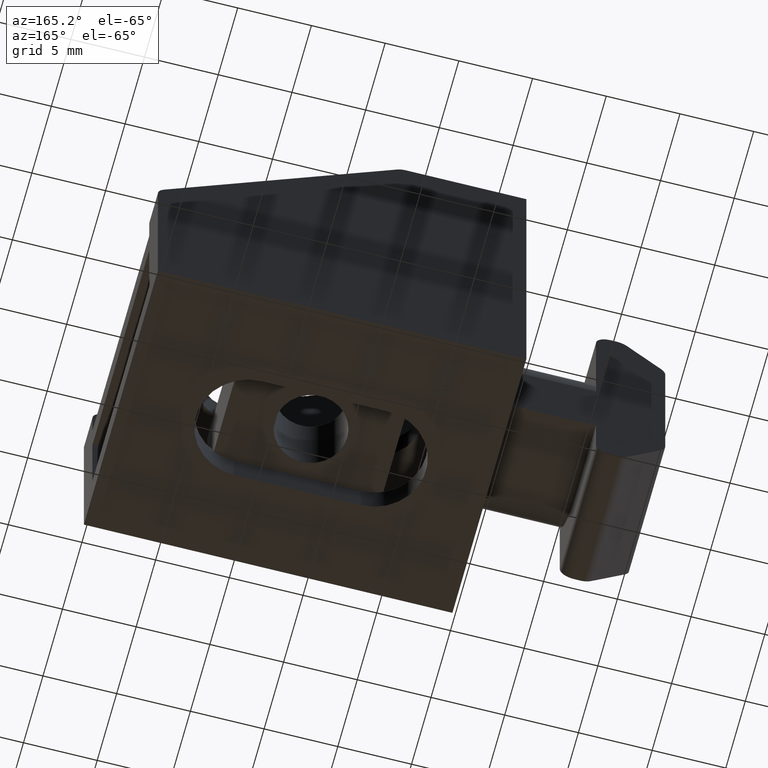
[diagram: clean part render]
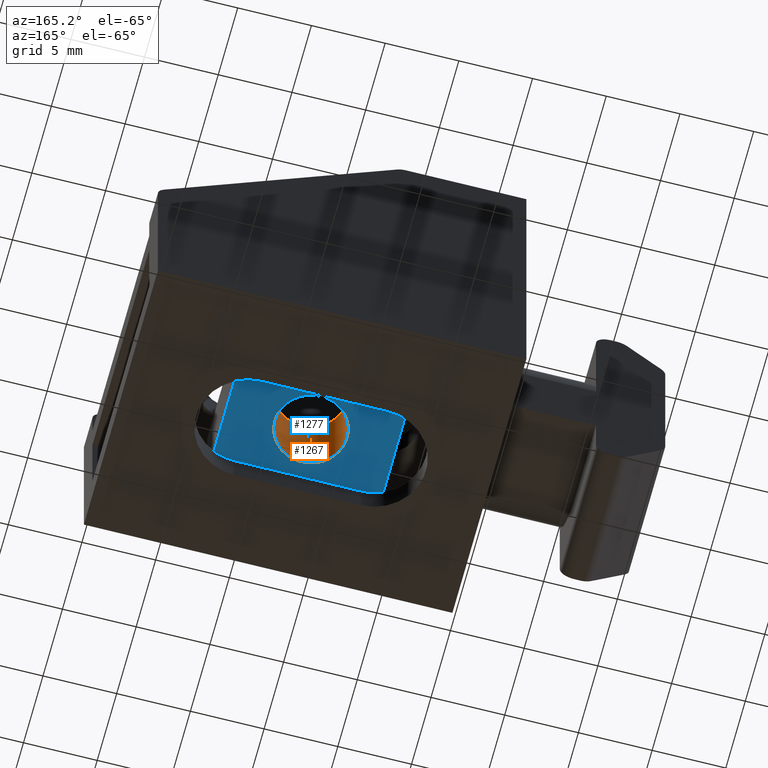
[diagram: same view with the hole feature highlighted: cylindrical wall and planar end face, labeled with their STEP entity ids]
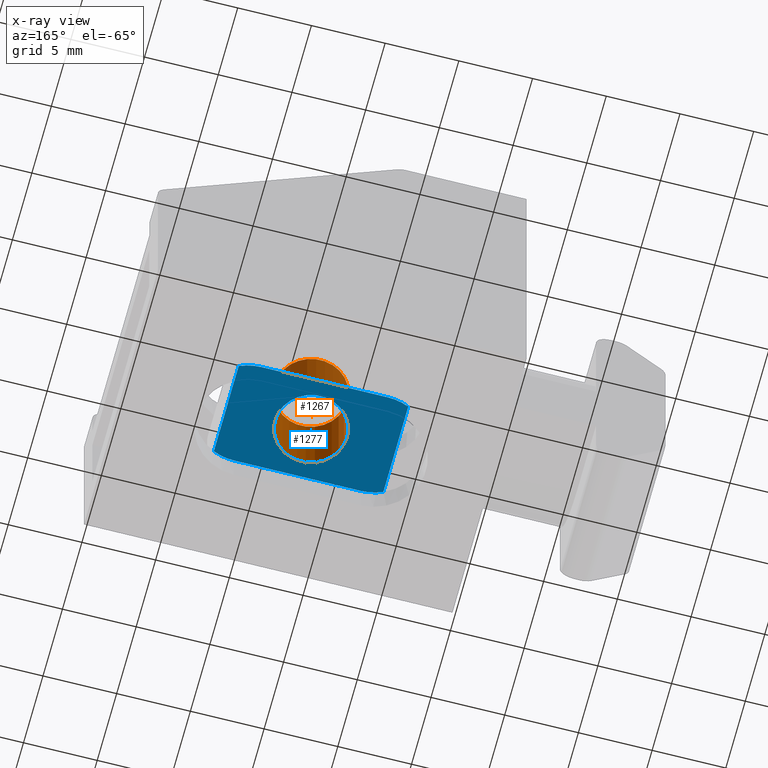
[diagram: x-ray of the same camera — body ghosted, the hole faces saturated]
A machine part, auxiliary view. The highlighted faces form one hole feature of diameter 4.917 mm: the cylindrical wall (entity #1267, orange) and its adjacent planar end face (entity #1277, blue) — they share a circular edge in the B-rep.
The next image is the same camera in x-ray (body ghosted, the hole faces saturated) — the bore reads through the body.
Wall:
#352=FACE_BOUND('',#425,.T.);
#360=FACE_OUTER_BOUND('',#424,.T.);
#424=EDGE_LOOP('',(#862));
#425=EDGE_LOOP('',(#863));
#496=CIRCLE('',#1334,2.4585);
#497=CIRCLE('',#1335,2.4585);
#544=VERTEX_POINT('',#1817);
#545=VERTEX_POINT('',#1819);
#670=EDGE_CURVE('',#544,#544,#496,.T.);
#671=EDGE_CURVE('',#545,#545,#497,.T.);
#862=ORIENTED_EDGE('',*,*,#670,.F.);
#863=ORIENTED_EDGE('',*,*,#671,.F.);
#1246=CYLINDRICAL_SURFACE('',#1333,2.4585);
#1267=ADVANCED_FACE('',(#360,#352),#1246,.F.);
#1333=AXIS2_PLACEMENT_3D('',#1816,#1447,#1448);
#1334=AXIS2_PLACEMENT_3D('',#1818,#1449,#1450);
#1335=AXIS2_PLACEMENT_3D('',#1820,#1451,#1452);
#1447=DIRECTION('center_axis',(3.52451753849256E-16,-1.52085345839063E-16,
1.));
#1448=DIRECTION('ref_axis',(1.,0.,-3.52451753849256E-16));
#1449=DIRECTION('center_axis',(1.77635683940025E-16,0.,1.));
#1450=DIRECTION('ref_axis',(1.,0.,-3.52451753849256E-16));
#1451=DIRECTION('center_axis',(-3.52451753849256E-16,1.52085345839063E-16,
-1.));
#1452=DIRECTION('ref_axis',(1.,0.,-3.52451753849256E-16));
#1816=CARTESIAN_POINT('Origin',(12.1,6.7404369530123E-15,-40.1700948508547));
#1817=CARTESIAN_POINT('',(9.6415,-4.51299118420538E-18,2.2));
#1818=CARTESIAN_POINT('Origin',(12.1,2.96566424386171E-16,2.2));
#1819=CARTESIAN_POINT('',(14.5585,-5.55111512312578E-16,7.79999999999999));
#1820=CARTESIAN_POINT('Origin',(12.1,-5.55111512312578E-16,7.79999999999999));
End face:
#19=PLANE('',#1355);
#84=LINE('',#1882,#228);
#90=LINE('',#1894,#234);
#92=LINE('',#1902,#236);
#93=LINE('',#1906,#237);
#228=VECTOR('',#1505,6.37102817447859);
#234=VECTOR('',#1517,6.37102817447859);
#236=VECTOR('',#1525,8.60000000000001);
#237=VECTOR('',#1530,8.6);
#354=FACE_BOUND('',#437,.T.);
#370=FACE_OUTER_BOUND('',#436,.T.);
#436=EDGE_LOOP('',(#917,#918,#919,#920,#921,#922,#923,#924));
#437=EDGE_LOOP('',(#925));
#496=CIRCLE('',#1334,2.4585);
#508=CIRCLE('',#1356,3.5);
#509=CIRCLE('',#1357,3.5);
#510=CIRCLE('',#1358,3.5);
#511=CIRCLE('',#1359,3.5);
#544=VERTEX_POINT('',#1817);
#569=VERTEX_POINT('',#1879);
#570=VERTEX_POINT('',#1881);
#572=VERTEX_POINT('',#1891);
#573=VERTEX_POINT('',#1893);
#574=VERTEX_POINT('',#1897);
#575=VERTEX_POINT('',#1899);
#576=VERTEX_POINT('',#1901);
#577=VERTEX_POINT('',#1904);
#670=EDGE_CURVE('',#544,#544,#496,.T.);
#701=EDGE_CURVE('',#569,#570,#84,.T.);
#708=EDGE_CURVE('',#572,#573,#90,.T.);
#710=EDGE_CURVE('',#574,#573,#508,.T.);
#711=EDGE_CURVE('',#572,#575,#509,.T.);
#712=EDGE_CURVE('',#575,#576,#92,.T.);
#713=EDGE_CURVE('',#576,#570,#510,.T.);
#714=EDGE_CURVE('',#569,#577,#511,.T.);
#715=EDGE_CURVE('',#577,#574,#93,.T.);
#917=ORIENTED_EDGE('',*,*,#710,.T.);
#918=ORIENTED_EDGE('',*,*,#708,.F.);
#919=ORIENTED_EDGE('',*,*,#711,.T.);
#920=ORIENTED_EDGE('',*,*,#712,.T.);
#921=ORIENTED_EDGE('',*,*,#713,.T.);
#922=ORIENTED_EDGE('',*,*,#701,.F.);
#923=ORIENTED_EDGE('',*,*,#714,.T.);
#924=ORIENTED_EDGE('',*,*,#715,.T.);
#925=ORIENTED_EDGE('',*,*,#670,.T.);
#1277=ADVANCED_FACE('',(#370,#354),#19,.T.);
#1334=AXIS2_PLACEMENT_3D('',#1818,#1449,#1450);
#1355=AXIS2_PLACEMENT_3D('',#1896,#1519,#1520);
#1356=AXIS2_PLACEMENT_3D('',#1898,#1521,#1522);
#1357=AXIS2_PLACEMENT_3D('',#1900,#1523,#1524);
#1358=AXIS2_PLACEMENT_3D('',#1903,#1526,#1527);
#1359=AXIS2_PLACEMENT_3D('',#1905,#1528,#1529);
#1449=DIRECTION('center_axis',(1.77635683940025E-16,0.,1.));
#1450=DIRECTION('ref_axis',(1.,0.,-3.52451753849256E-16));
#1505=DIRECTION('',(0.,1.,0.));
#1517=DIRECTION('',(0.,-1.,0.));
#1519=DIRECTION('center_axis',(-1.77635683940025E-16,0.,-1.));
#1520=DIRECTION('ref_axis',(-1.,0.,1.77635683940025E-16));
#1521=DIRECTION('center_axis',(-1.77635683940025E-16,0.,-1.));
#1522=DIRECTION('ref_axis',(0.,-1.,0.));
#1523=DIRECTION('center_axis',(-1.77635683940025E-16,0.,-1.));
#1524=DIRECTION('ref_axis',(0.,-1.,0.));
#1525=DIRECTION('',(1.,0.,-1.77635683940025E-16));
#1526=DIRECTION('center_axis',(-1.77635683940025E-16,0.,-1.));
#1527=DIRECTION('ref_axis',(0.,1.,0.));
#1528=DIRECTION('center_axis',(-1.77635683940025E-16,0.,-1.));
#1529=DIRECTION('ref_axis',(0.,1.,0.));
#1530=DIRECTION('',(-1.,2.58191401075618E-16,1.77635683940025E-16));
#1817=CARTESIAN_POINT('',(9.6415,-4.51299118420538E-18,2.2));
#1818=CARTESIAN_POINT('Origin',(12.1,2.96566424386171E-16,2.2));
#1879=CARTESIAN_POINT('',(17.85,-3.1855140872393,2.2));
#1881=CARTESIAN_POINT('',(17.85,3.1855140872393,2.2));
#1882=CARTESIAN_POINT('',(17.85,-5.75,2.2));
#1891=CARTESIAN_POINT('',(6.35,3.1855140872393,2.2));
#1893=CARTESIAN_POINT('',(6.35,-3.1855140872393,2.2));
#1894=CARTESIAN_POINT('',(6.35,5.75,2.2));
#1896=CARTESIAN_POINT('Origin',(12.1,2.77555756156289E-16,2.2));
#1897=CARTESIAN_POINT('',(7.8,-3.5,2.2));
#1898=CARTESIAN_POINT('Origin',(7.8,0.,2.2));
#1899=CARTESIAN_POINT('',(7.8,3.5,2.2));
#1900=CARTESIAN_POINT('Origin',(7.8,0.,2.2));
#1901=CARTESIAN_POINT('',(16.4,3.5,2.2));
#1902=CARTESIAN_POINT('',(20.7,3.5,2.2));
#1903=CARTESIAN_POINT('Origin',(16.4,0.,2.2));
#1904=CARTESIAN_POINT('',(16.4,-3.5,2.2));
#1905=CARTESIAN_POINT('Origin',(16.4,0.,2.2));
#1906=CARTESIAN_POINT('',(16.4,-3.5,2.2));